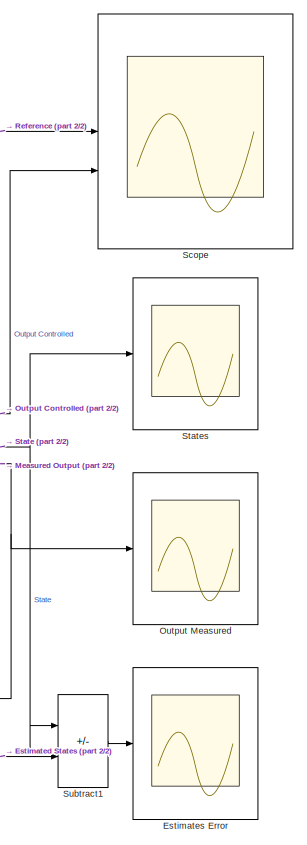
[diagram: root canvas - part 1/2, right side, full height]
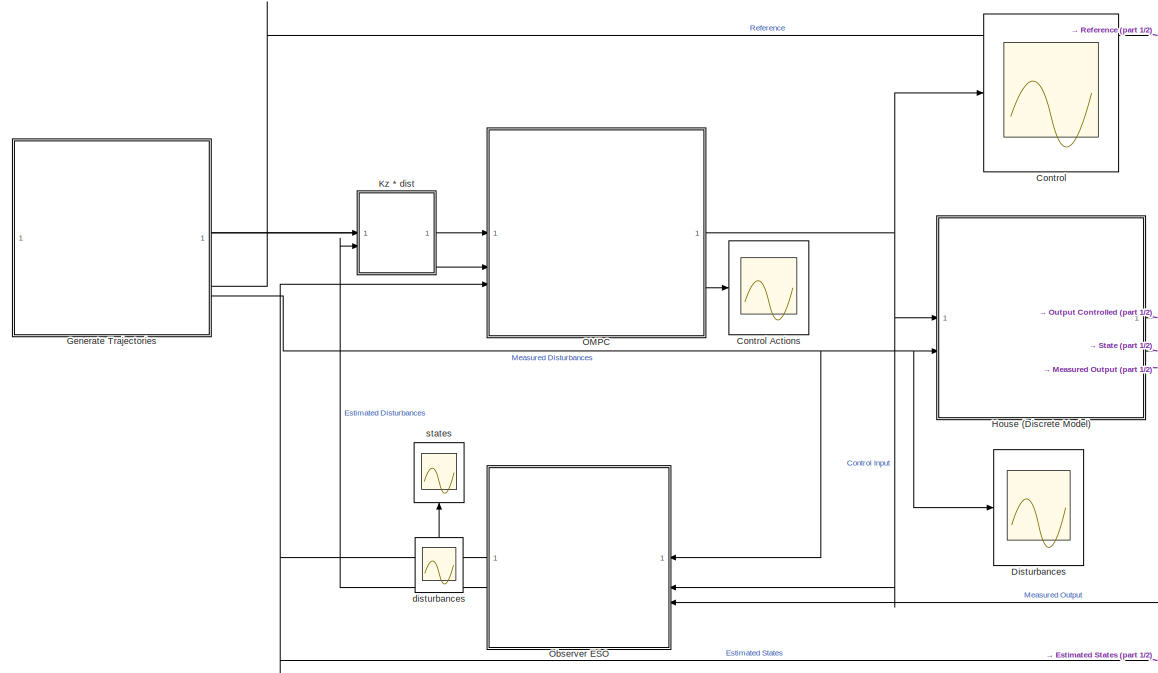
[diagram: root canvas - part 2/2, most of the canvas]
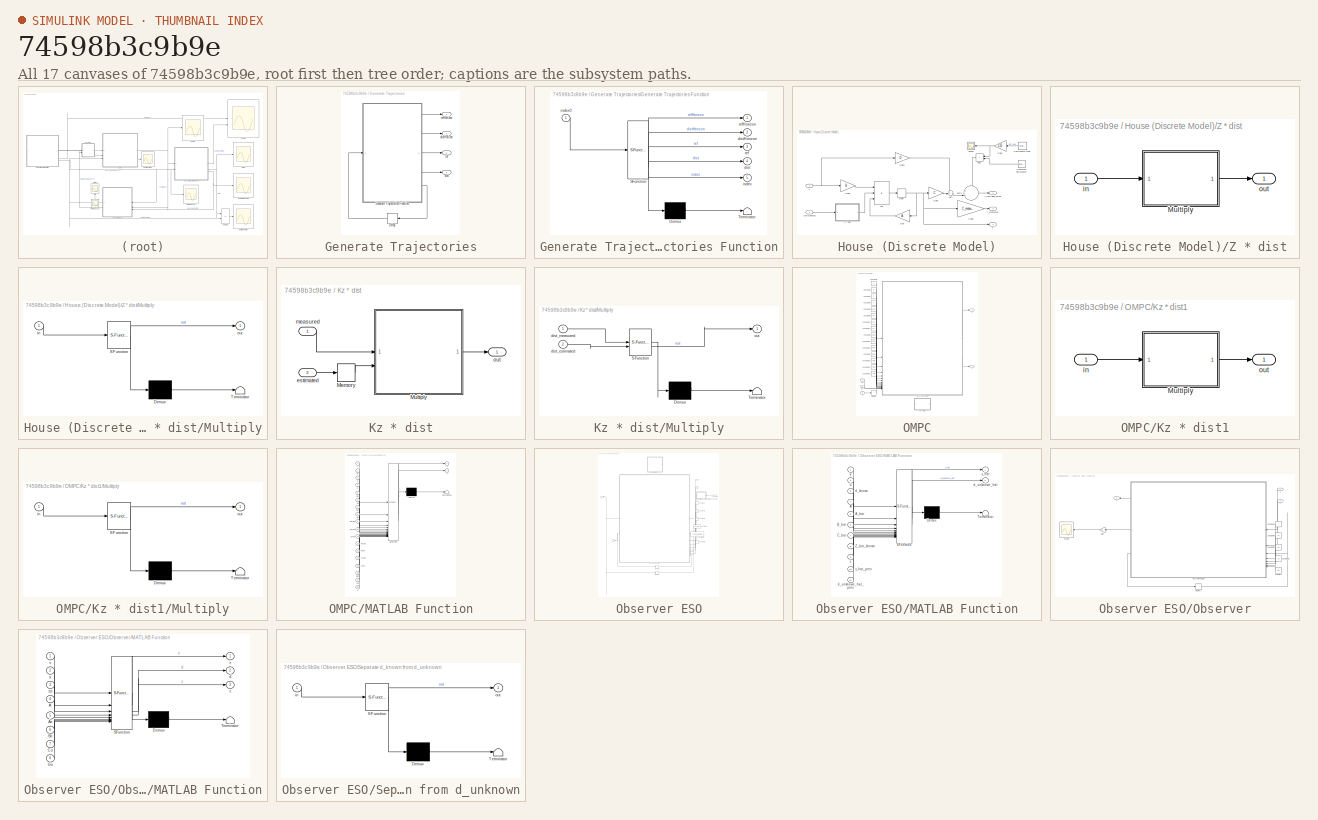
[diagram: thumbnail index - all 17 canvases of the model, root first then tree order]
MODEL slx_74598b3c9b9e
KIND model
CONFIG AbsTol = auto
CONFIG EnableMultiTasking = off
CONFIG FixedStep = Ts
CONFIG MaxStep = auto
CONFIG MinStep = auto
CONFIG RelTol = 1e-3
CONFIG SampleTimeConstraint = Unconstrained
CONFIG SolverName = ode8
CONFIG StartTime = 0.0
CONFIG StopTime = time
BLOCK [Scope] Control
  Floating = off
  NumInputPorts = 1
  ScopeSpecificationString = Simulink.scopes.TimeScopeBlockCfg('CurrentConfiguration', extmgr.ConfigurationSet(extmgr.Configuration('Core','General UI',true,'FigureColor',[1 1 1]),extmgr.Configuration('Core','Source UI',true),extmgr.Configuration('Sources','WiredSimulink',true,'DataLoggingVariableName','ScopeData2'),extmgr.Configuration('Visuals','Time Domain',true,'SerializedDisplays',{struct('MinYLimReal','20.91505','MaxYLi...<+1700ch>
BLOCK [Scope] Control Actions
  Floating = off
  NumInputPorts = 1
  ScopeSpecificationString = Simulink.scopes.TimeScopeBlockCfg('CurrentConfiguration', extmgr.ConfigurationSet(extmgr.Configuration('Core','General UI',true,'FigureColor',[1 1 1]),extmgr.Configuration('Core','Source UI',true),extmgr.Configuration('Sources','WiredSimulink',true,'DataLoggingVariableName','ScopeData1'),extmgr.Configuration('Visuals','Time Domain',true,'SerializedDisplays',{struct('MinYLimReal','-27.8152','MaxYLi...<+1680ch>
BLOCK [Scope] Disturbances
  Floating = off
  NumInputPorts = 1
  ScopeSpecificationString = Simulink.scopes.TimeScopeBlockCfg('CurrentConfiguration', extmgr.ConfigurationSet(extmgr.Configuration('Core','General UI',true,'FigureColor',[1 1 1]),extmgr.Configuration('Core','Source UI',true),extmgr.Configuration('Sources','WiredSimulink',true,'DataLoggingVariableName','ScopeData6'),extmgr.Configuration('Visuals','Time Domain',true,'SerializedDisplays',{struct('MinYLimReal','-126.0625','MaxYL...<+1825ch>
BLOCK [Scope] Estimates Error
  Floating = off
  NumInputPorts = 1
  ScopeSpecificationString = Simulink.scopes.TimeScopeBlockCfg('CurrentConfiguration', extmgr.ConfigurationSet(extmgr.Configuration('Core','General UI',true),extmgr.Configuration('Core','Source UI',true),extmgr.Configuration('Sources','WiredSimulink',true,'DataLoggingVariableName','ScopeData3'),extmgr.Configuration('Visuals','Time Domain',true,'SerializedDisplays',{struct('MinYLimReal','-4.83668','MaxYLimReal','3.90445','YLab...<+1980ch>
BLOCK [SubSystem] Generate Trajectories
BLOCK [Delay] Generate Trajectories/Delay
  DelayLength = 1
  InitialCondition = 1
  InputPortMap = u0
  NameLocation = top
BLOCK [SubSystem] Generate Trajectories/Generate Trajectories Function
  ErrorFcn = Stateflow.Translate.translate
  LibrarySourceBlock = simulink/User-Defined\nFunctions/MATLAB Function
  PermitHierarchicalResolution = ExplicitOnly
  SFBlockType = MATLAB Function
  TreatAsAtomicUnit = on
BLOCK [Demux] Generate Trajectories/Generate Trajectories Function/ Demux 
  Outputs = 1
BLOCK [S-Function] Generate Trajectories/Generate Trajectories Function/ SFunction 
  EnableBusSupport = on
  FunctionName = sf_sfun
  Parameters = Ts,distValues,na,refValues,time
  PortCounts = [1 6]
  SFcnIsStateOwnerBlock = off
  SFunctionDeploymentMode = off
  Tag = Stateflow S-Function 10
BLOCK [Terminator] Generate Trajectories/Generate Trajectories Function/ Terminator 
BLOCK [Outport] Generate Trajectories/Generate Trajectories Function/dist
  Port = 4
BLOCK [Outport] Generate Trajectories/Generate Trajectories Function/distHorizon
  Port = 2
BLOCK [Outport] Generate Trajectories/Generate Trajectories Function/index
  Port = 5
BLOCK [Inport] Generate Trajectories/Generate Trajectories Function/index0
BLOCK [Outport] Generate Trajectories/Generate Trajectories Function/ref
  Port = 3
BLOCK [Outport] Generate Trajectories/Generate Trajectories Function/refHorizon
BLOCK [Outport] Generate Trajectories/dist
  Port = 4
BLOCK [Outport] Generate Trajectories/distHorizon
  Port = 2
BLOCK [Outport] Generate Trajectories/ref
  Port = 3
BLOCK [Outport] Generate Trajectories/refHorizon
BLOCK [SubSystem] House (Discrete Model)
BLOCK [Sum] House (Discrete Model)/Add
  IconShape = rectangular
  Inputs = +++
BLOCK [Sum] House (Discrete Model)/Add1
  Commented = on
  IconShape = rectangular
  NameLocation = top
BLOCK [Delay] House (Discrete Model)/Delay
  DelayLength = 1
  InitialCondition = x0
  InputPortMap = u0
BLOCK [Reference] House (Discrete Model)/Disturbance Load  REF=eeStairGenerator/Stair Generator
  Commented = on
  LibrarySourceBlock = ee_sl_lib/General Control/Stair Generator
  NameLocation = top
  SourceBlock = eeStairGenerator/Stair Generator
  SourceType = Stair Generator
BLOCK [Inport] House (Discrete Model)/Disturbances
  Port = 2
BLOCK [Gain] House (Discrete Model)/Gain
  Gain = A
  Multiplication = Matrix(K*u) (u vector)
  NameLocation = top
BLOCK [Gain] House (Discrete Model)/Gain1
  Gain = C
  Multiplication = Matrix(K*u) (u vector)
BLOCK [Gain] House (Discrete Model)/Gain2
  Gain = B
  Multiplication = Matrix(K*u) (u vector)
BLOCK [Gain] House (Discrete Model)/Gain3
  Gain = D
  Multiplication = Matrix(K*u)
BLOCK [Gain] House (Discrete Model)/Gain4
  Commented = on
  Gain = 0.25
  NameLocation = top
BLOCK [Gain] House (Discrete Model)/Gain5
  Gain = C_measured
  Multiplication = Matrix(K*u) (u vector)
BLOCK [Reference] House (Discrete Model)/Measuring disturbance  REF=simulink/Sources/Band-Limited
White Noise
  Commented = on
  SourceBlock = simulink/Sources/Band-Limited\nWhite Noise
  SourceType = Band-Limited White Noise.
BLOCK [Scope] House (Discrete Model)/Scope
  Commented = on
  Floating = off
  NameLocation = top
  NumInputPorts = 1
  ScopeSpecificationString = Simulink.scopes.TimeScopeBlockCfg('CurrentConfiguration', extmgr.ConfigurationSet(extmgr.Configuration('Core','General UI',true),extmgr.Configuration('Core','Source UI',true),extmgr.Configuration('Sources','WiredSimulink',true,'DataLoggingVariableName','ScopeData1'),extmgr.Configuration('Visuals','Time Domain',true,'SerializedDisplays',{struct('MinYLimReal','0.875','MaxYLimReal','2.125','YLabelRea...<+1381ch>
BLOCK [Sum] House (Discrete Model)/Sum
  Inputs = ++|
BLOCK [Sum] House (Discrete Model)/Sum1
  Inputs = ++|
BLOCK [SubSystem] House (Discrete Model)/Z * dist
BLOCK [SubSystem] House (Discrete Model)/Z * dist/Multiply
  ErrorFcn = Stateflow.Translate.translate
  LibrarySourceBlock = simulink/User-Defined\nFunctions/MATLAB Function
  PermitHierarchicalResolution = ExplicitOnly
  SFBlockType = MATLAB Function
  TreatAsAtomicUnit = on
BLOCK [Demux] House (Discrete Model)/Z * dist/Multiply/ Demux 
  Outputs = 1
BLOCK [S-Function] House (Discrete Model)/Z * dist/Multiply/ SFunction 
  EnableBusSupport = on
  FunctionName = sf_sfun
  Parameters = Z
  PortCounts = [1 2]
  SFcnIsStateOwnerBlock = off
  SFunctionDeploymentMode = off
  Tag = Stateflow S-Function 1
BLOCK [Terminator] House (Discrete Model)/Z * dist/Multiply/ Terminator 
BLOCK [Inport] House (Discrete Model)/Z * dist/Multiply/in
BLOCK [Outport] House (Discrete Model)/Z * dist/Multiply/out
BLOCK [Inport] House (Discrete Model)/Z * dist/in
BLOCK [Outport] House (Discrete Model)/Z * dist/out
BLOCK [Inport] House (Discrete Model)/u
BLOCK [Outport] House (Discrete Model)/x
  Port = 2
BLOCK [Outport] House (Discrete Model)/y_controlled_output
BLOCK [Outport] House (Discrete Model)/y_measured
  Port = 3
BLOCK [SubSystem] Kz * dist
BLOCK [Memory] Kz * dist/Memory
  InitialCondition = zeros(size(Z,2)-3,1)
BLOCK [SubSystem] Kz * dist/Multiply
  ErrorFcn = Stateflow.Translate.translate
  LibrarySourceBlock = simulink/User-Defined\nFunctions/MATLAB Function
  PermitHierarchicalResolution = ExplicitOnly
  SFBlockType = MATLAB Function
  TreatAsAtomicUnit = on
BLOCK [Demux] Kz * dist/Multiply/ Demux 
  Outputs = 1
BLOCK [S-Function] Kz * dist/Multiply/ SFunction 
  EnableBusSupport = on
  FunctionName = sf_sfun
  Parameters = Ad,Cd,Zd,na
  PortCounts = [2 2]
  SFcnIsStateOwnerBlock = off
  SFunctionDeploymentMode = off
  Tag = Stateflow S-Function 12
BLOCK [Terminator] Kz * dist/Multiply/ Terminator 
BLOCK [Inport] Kz * dist/Multiply/dist_estimated
  Port = 2
BLOCK [Inport] Kz * dist/Multiply/dist_measured
BLOCK [Outport] Kz * dist/Multiply/out
BLOCK [Inport] Kz * dist/estimated
  Port = 2
BLOCK [Inport] Kz * dist/measured
BLOCK [Outport] Kz * dist/out
BLOCK [SubSystem] OMPC
BLOCK [Constant] OMPC/Constant1
  Value = xmax
  VectorParams1D = off
BLOCK [Constant] OMPC/Constant10
  Value = umax
  VectorParams1D = off
BLOCK [Constant] OMPC/Constant11
  Value = umin
  VectorParams1D = off
BLOCK [Constant] OMPC/Constant12
  Value = ymax
BLOCK [Constant] OMPC/Constant13
  Value = ymin
BLOCK [Constant] OMPC/Constant14
  Value = nc
BLOCK [Constant] OMPC/Constant15
  Value = xmin
BLOCK [Constant] OMPC/Constant16
  Value = Scr
  VectorParams1D = off
BLOCK [Constant] OMPC/Constant2
  Value = A
BLOCK [Constant] OMPC/Constant3
  Value = B
  VectorParams1D = off
BLOCK [Constant] OMPC/Constant4
  Value = C
  VectorParams1D = off
BLOCK [Constant] OMPC/Constant5
  Value = npred
BLOCK [Constant] OMPC/Constant6
  Value = K
  VectorParams1D = off
BLOCK [Constant] OMPC/Constant8
  Value = Sxc
  VectorParams1D = off
BLOCK [Constant] OMPC/Constant9
  Value = Sc
  VectorParams1D = off
BLOCK [SubSystem] OMPC/Kz * dist1
  Commented = on
BLOCK [SubSystem] OMPC/Kz * dist1/Multiply
  ErrorFcn = Stateflow.Translate.translate
  LibrarySourceBlock = simulink/User-Defined\nFunctions/MATLAB Function
  PermitHierarchicalResolution = ExplicitOnly
  SFBlockType = MATLAB Function
  TreatAsAtomicUnit = on
BLOCK [Demux] OMPC/Kz * dist1/Multiply/ Demux 
  Outputs = 1
BLOCK [S-Function] OMPC/Kz * dist1/Multiply/ SFunction 
  EnableBusSupport = on
  FunctionName = sf_sfun
  Parameters = Kz
  PortCounts = [1 2]
  SFcnIsStateOwnerBlock = off
  SFunctionDeploymentMode = off
  Tag = Stateflow S-Function 13
BLOCK [Terminator] OMPC/Kz * dist1/Multiply/ Terminator 
BLOCK [Inport] OMPC/Kz * dist1/Multiply/in
BLOCK [Outport] OMPC/Kz * dist1/Multiply/out
BLOCK [Inport] OMPC/Kz * dist1/in
BLOCK [Outport] OMPC/Kz * dist1/out
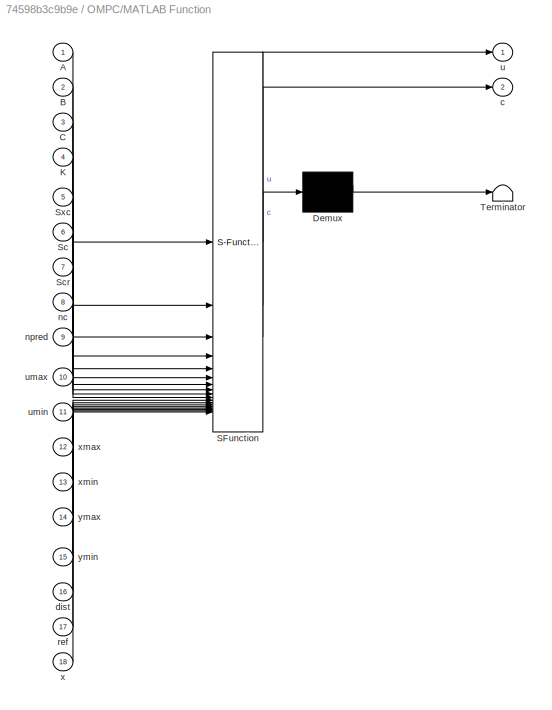
BLOCK [SubSystem] OMPC/MATLAB Function
  ErrorFcn = Stateflow.Translate.translate
  LibrarySourceBlock = simulink/User-Defined\nFunctions/MATLAB Function
  PermitHierarchicalResolution = ExplicitOnly
  SFBlockType = MATLAB Function
  TreatAsAtomicUnit = on
BLOCK [Demux] OMPC/MATLAB Function/ Demux 
  Outputs = 1
BLOCK [S-Function] OMPC/MATLAB Function/ SFunction 
  EnableBusSupport = on
  FunctionName = sf_sfun
  PortCounts = [18 3]
  SFcnIsStateOwnerBlock = off
  SFunctionDeploymentMode = off
  Tag = Stateflow S-Function 14
BLOCK [Terminator] OMPC/MATLAB Function/ Terminator 
BLOCK [Inport] OMPC/MATLAB Function/A
BLOCK [Inport] OMPC/MATLAB Function/B
  Port = 2
BLOCK [Inport] OMPC/MATLAB Function/C
  Port = 3
BLOCK [Inport] OMPC/MATLAB Function/K
  Port = 4
BLOCK [Inport] OMPC/MATLAB Function/Sc
  Port = 6
BLOCK [Inport] OMPC/MATLAB Function/Scr
  Port = 7
BLOCK [Inport] OMPC/MATLAB Function/Sxc
  Port = 5
BLOCK [Outport] OMPC/MATLAB Function/c
  Port = 2
BLOCK [Inport] OMPC/MATLAB Function/dist
  Port = 16
BLOCK [Inport] OMPC/MATLAB Function/nc
  Port = 8
BLOCK [Inport] OMPC/MATLAB Function/npred
  Port = 9
BLOCK [Inport] OMPC/MATLAB Function/ref
  Port = 17
BLOCK [Outport] OMPC/MATLAB Function/u
BLOCK [Inport] OMPC/MATLAB Function/umax
  Port = 10
BLOCK [Inport] OMPC/MATLAB Function/umin
  Port = 11
BLOCK [Inport] OMPC/MATLAB Function/x
  Port = 18
BLOCK [Inport] OMPC/MATLAB Function/xmax
  Port = 12
BLOCK [Inport] OMPC/MATLAB Function/xmin
  Port = 13
BLOCK [Inport] OMPC/MATLAB Function/ymax
  Port = 14
BLOCK [Inport] OMPC/MATLAB Function/ymin
  Port = 15
BLOCK [Memory] OMPC/Memory
  InitialCondition = x0
BLOCK [Outport] OMPC/c
  Port = 2
BLOCK [Inport] OMPC/dist
  Port = 2
BLOCK [Inport] OMPC/ref
BLOCK [Outport] OMPC/u
BLOCK [Inport] OMPC/x
  Port = 3
BLOCK [SubSystem] Observer ESO
BLOCK [Constant] Observer ESO/Constant
  NameLocation = top
  Value = A
BLOCK [Constant] Observer ESO/Constant1
  NameLocation = top
  Value = A_bar
BLOCK [Constant] Observer ESO/Constant2
  NameLocation = top
  Value = B_bar
BLOCK [Constant] Observer ESO/Constant3
  NameLocation = top
  Value = C_bar
BLOCK [Constant] Observer ESO/Constant4
  NameLocation = top
  Value = Z_bar_known
BLOCK [Constant] Observer ESO/Constant5
  NameLocation = top
  Value = L
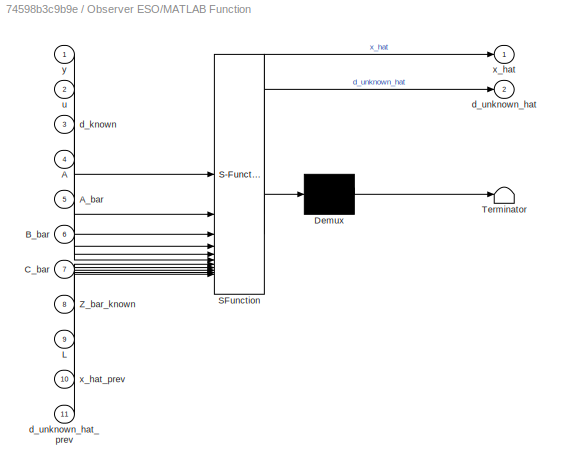
BLOCK [SubSystem] Observer ESO/MATLAB Function
  ErrorFcn = Stateflow.Translate.translate
  LibrarySourceBlock = simulink/User-Defined\nFunctions/MATLAB Function
  NameLocation = top
  PermitHierarchicalResolution = ExplicitOnly
  SFBlockType = MATLAB Function
  TreatAsAtomicUnit = on
BLOCK [Demux] Observer ESO/MATLAB Function/ Demux 
  Outputs = 1
BLOCK [S-Function] Observer ESO/MATLAB Function/ SFunction 
  EnableBusSupport = on
  FunctionName = sf_sfun
  PortCounts = [11 3]
  SFcnIsStateOwnerBlock = off
  SFunctionDeploymentMode = off
  Tag = Stateflow S-Function 15
BLOCK [Terminator] Observer ESO/MATLAB Function/ Terminator 
BLOCK [Inport] Observer ESO/MATLAB Function/A
  Port = 4
BLOCK [Inport] Observer ESO/MATLAB Function/A_bar
  Port = 5
BLOCK [Inport] Observer ESO/MATLAB Function/B_bar
  Port = 6
BLOCK [Inport] Observer ESO/MATLAB Function/C_bar
  Port = 7
BLOCK [Inport] Observer ESO/MATLAB Function/L
  Port = 9
BLOCK [Inport] Observer ESO/MATLAB Function/Z_bar_known
  Port = 8
BLOCK [Inport] Observer ESO/MATLAB Function/d_known
  Port = 3
BLOCK [Outport] Observer ESO/MATLAB Function/d_unknown_hat
  Port = 2
BLOCK [Inport] Observer ESO/MATLAB Function/d_unknown_hat_prev
  Port = 11
BLOCK [Inport] Observer ESO/MATLAB Function/u
  Port = 2
BLOCK [Outport] Observer ESO/MATLAB Function/x_hat
BLOCK [Inport] Observer ESO/MATLAB Function/x_hat_prev
  Port = 10
BLOCK [Inport] Observer ESO/MATLAB Function/y
BLOCK [Memory] Observer ESO/Memory
  InitialCondition = zeros(size(Z,2) - size(Z_bar_known,2),1)
BLOCK [Memory] Observer ESO/Memory1
  InitialCondition = x0
BLOCK [SubSystem] Observer ESO/Observer
  Commented = on
BLOCK [Constant] Observer ESO/Observer/Constant
  NameLocation = top
  Value = Go
  VectorParams1D = off
BLOCK [Constant] Observer ESO/Observer/Constant1
  NameLocation = top
  Value = Co
  VectorParams1D = off
BLOCK [Constant] Observer ESO/Observer/Constant2
  NameLocation = top
  Value = Bo
  VectorParams1D = off
BLOCK [Constant] Observer ESO/Observer/Constant3
  NameLocation = top
  Value = Ao
  VectorParams1D = off
BLOCK [Constant] Observer ESO/Observer/Constant4
  NameLocation = top
  Value = A
BLOCK [Gain] Observer ESO/Observer/Gain
  Gain = Kz
  Multiplication = Matrix(K*u) (u vector)
  NameLocation = top
BLOCK [SubSystem] Observer ESO/Observer/MATLAB Function
  ErrorFcn = Stateflow.Translate.translate
  LibrarySourceBlock = simulink/User-Defined\nFunctions/MATLAB Function
  NameLocation = top
  PermitHierarchicalResolution = ExplicitOnly
  SFBlockType = MATLAB Function
  TreatAsAtomicUnit = on
BLOCK [Demux] Observer ESO/Observer/MATLAB Function/ Demux 
  Outputs = 1
BLOCK [S-Function] Observer ESO/Observer/MATLAB Function/ SFunction 
  EnableBusSupport = on
  FunctionName = sf_sfun
  PortCounts = [8 4]
  SFcnIsStateOwnerBlock = off
  SFunctionDeploymentMode = off
  Tag = Stateflow S-Function 16
BLOCK [Terminator] Observer ESO/Observer/MATLAB Function/ Terminator 
BLOCK [Inport] Observer ESO/Observer/MATLAB Function/A
  Port = 4
BLOCK [Inport] Observer ESO/Observer/MATLAB Function/Ao
  Port = 5
BLOCK [Inport] Observer ESO/Observer/MATLAB Function/Bo
  Port = 6
BLOCK [Inport] Observer ESO/Observer/MATLAB Function/Co
  Port = 7
BLOCK [Inport] Observer ESO/Observer/MATLAB Function/Go
  Port = 8
BLOCK [Outport] Observer ESO/Observer/MATLAB Function/d
  Port = 2
BLOCK [Inport] Observer ESO/Observer/MATLAB Function/u
BLOCK [Outport] Observer ESO/Observer/MATLAB Function/x
BLOCK [Inport] Observer ESO/Observer/MATLAB Function/y
  Port = 2
BLOCK [Outport] Observer ESO/Observer/MATLAB Function/z
  Port = 3
BLOCK [Inport] Observer ESO/Observer/MATLAB Function/zp
  Port = 3
BLOCK [Memory] Observer ESO/Observer/Memory
  InitialCondition = [x0;zeros(size(Z,2),1)]
BLOCK [Scope] Observer ESO/Observer/Scope
  Floating = off
  NameLocation = top
  NumInputPorts = 1
  ScopeSpecificationString = Simulink.scopes.TimeScopeBlockCfg('CurrentConfiguration', extmgr.ConfigurationSet(extmgr.Configuration('Core','General UI',true),extmgr.Configuration('Core','Source UI',true),extmgr.Configuration('Sources','WiredSimulink',true,'DataLoggingVariableName','ScopeData1'),extmgr.Configuration('Visuals','Time Domain',true,'SerializedDisplays',{struct('MinYLimReal','-0.000000000000000000000000024','MaxYLi...<+1594ch>
BLOCK [Inport] Observer ESO/Observer/u
BLOCK [Outport] Observer ESO/Observer/x
  NameLocation = top
BLOCK [Inport] Observer ESO/Observer/y
  Port = 2
BLOCK [SubSystem] Observer ESO/Separate d_known from d_unknown
  ErrorFcn = Stateflow.Translate.translate
  LibrarySourceBlock = simulink/User-Defined\nFunctions/MATLAB Function
  NameLocation = top
  PermitHierarchicalResolution = ExplicitOnly
  SFBlockType = MATLAB Function
  TreatAsAtomicUnit = on
BLOCK [Demux] Observer ESO/Separate d_known from d_unknown/ Demux 
  Outputs = 1
BLOCK [S-Function] Observer ESO/Separate d_known from d_unknown/ SFunction 
  EnableBusSupport = on
  FunctionName = sf_sfun
  PortCounts = [1 2]
  SFcnIsStateOwnerBlock = off
  SFunctionDeploymentMode = off
  Tag = Stateflow S-Function 17
BLOCK [Terminator] Observer ESO/Separate d_known from d_unknown/ Terminator 
BLOCK [Inport] Observer ESO/Separate d_known from d_unknown/in
BLOCK [Outport] Observer ESO/Separate d_known from d_unknown/out
BLOCK [Outport] Observer ESO/d
  NameLocation = top
  Port = 2
BLOCK [Inport] Observer ESO/d_known
  NameLocation = top
BLOCK [Inport] Observer ESO/u
  NameLocation = top
  Port = 2
BLOCK [Outport] Observer ESO/x
  NameLocation = top
BLOCK [Inport] Observer ESO/y
  NameLocation = top
  Port = 3
BLOCK [Scope] Output Measured
  Floating = off
  NumInputPorts = 1
  ScopeSpecificationString = Simulink.scopes.TimeScopeBlockCfg('CurrentConfiguration', extmgr.ConfigurationSet(extmgr.Configuration('Core','General UI',true,'FigureColor',[1 1 1]),extmgr.Configuration('Core','Source UI',true),extmgr.Configuration('Sources','WiredSimulink',true,'DataLoggingVariableName','ScopeData4'),extmgr.Configuration('Visuals','Time Domain',true,'SerializedDisplays',{struct('MinYLimReal','19.36341','MaxYLi...<+4080ch>
BLOCK [Scope] Scope
  Floating = off
  NumInputPorts = 2
  ScopeSpecificationString = Simulink.scopes.TimeScopeBlockCfg('CurrentConfiguration', extmgr.ConfigurationSet(extmgr.Configuration('Core','General UI',true,'FigureColor',[1 1 1]),extmgr.Configuration('Core','Source UI',true),extmgr.Configuration('Sources','WiredSimulink',true,'DataLoggingVariableName','ScopeData5'),extmgr.Configuration('Visuals','Time Domain',true,'PlotType','Line','SerializedDisplays',{struct('MinYLimReal',...<+1889ch>
BLOCK [Scope] States
  Floating = off
  NumInputPorts = 1
  ScopeSpecificationString = Simulink.scopes.TimeScopeBlockCfg('CurrentConfiguration', extmgr.ConfigurationSet(extmgr.Configuration('Core','General UI',true,'FigureColor',[1 1 1]),extmgr.Configuration('Core','Source UI',true),extmgr.Configuration('Sources','WiredSimulink',true,'DataLoggingVariableName','ScopeData7'),extmgr.Configuration('Visuals','Time Domain',true,'SerializedDisplays',{struct('MinYLimReal','-8.19039','MaxYLi...<+4172ch>
BLOCK [Sum] Subtract1
  IconShape = rectangular
  Inputs = +-
BLOCK [Scope] disturbances
  Floating = off
  NameLocation = top
  NumInputPorts = 1
  ScopeSpecificationString = Simulink.scopes.TimeScopeBlockCfg('CurrentConfiguration', extmgr.ConfigurationSet(extmgr.Configuration('Core','General UI',true),extmgr.Configuration('Core','Source UI',true),extmgr.Configuration('Sources','WiredSimulink',true,'DataLoggingVariableName','ScopeData8'),extmgr.Configuration('Visuals','Time Domain',true,'SerializedDisplays',{struct('MinYLimReal','-0.0000000000000000000000000000008','Ma...<+2118ch>
BLOCK [Scope] states
  Floating = off
  NameLocation = top
  NumInputPorts = 1
  ScopeSpecificationString = Simulink.scopes.TimeScopeBlockCfg('CurrentConfiguration', extmgr.ConfigurationSet(extmgr.Configuration('Core','General UI',true),extmgr.Configuration('Core','Source UI',true),extmgr.Configuration('Sources','WiredSimulink',true,'DataLoggingVariableName','ScopeData9'),extmgr.Configuration('Visuals','Time Domain',true,'SerializedDisplays',{struct('MinYLimReal','-8.90175','MaxYLimReal','34.34191','YLa...<+2239ch>
LINE Generate Trajectories/Delay:1 -> Generate Trajectories/Generate Trajectories Function:1
LINE Generate Trajectories/Generate Trajectories Function:1 -> Generate Trajectories/refHorizon:1
LINE Generate Trajectories/Generate Trajectories Function:2 -> Generate Trajectories/distHorizon:1
LINE Generate Trajectories/Generate Trajectories Function:3 -> Generate Trajectories/ref:1
LINE Generate Trajectories/Generate Trajectories Function:4 -> Generate Trajectories/dist:1
LINE Generate Trajectories/Generate Trajectories Function:5 -> Generate Trajectories/Delay:1
LINE Generate Trajectories:1 -> OMPC:1
LINE Generate Trajectories:2 -> Kz * dist:1
LINE Generate Trajectories:3 -> Scope:1
NET Generate Trajectories:4 -> Disturbances:1, House (Discrete Model):2, Observer ESO:1
LINE House (Discrete Model)/Add1:1 -> House (Discrete Model)/Sum1:1
LINE House (Discrete Model)/Add:1 -> House (Discrete Model)/Delay:1
NET House (Discrete Model)/Delay:1 -> House (Discrete Model)/Gain1:1, House (Discrete Model)/Gain5:1, House (Discrete Model)/Gain:1, House (Discrete Model)/x:1
LINE House (Discrete Model)/Disturbance Load:1 -> House (Discrete Model)/Gain4:1
LINE House (Discrete Model)/Disturbances:1 -> House (Discrete Model)/Z * dist:1
LINE House (Discrete Model)/Gain1:1 -> House (Discrete Model)/Sum:2
LINE House (Discrete Model)/Gain2:1 -> House (Discrete Model)/Add:1
LINE House (Discrete Model)/Gain3:1 -> House (Discrete Model)/Sum:1
NET House (Discrete Model)/Gain4:1 -> House (Discrete Model)/Add1:1, House (Discrete Model)/Scope:1
LINE House (Discrete Model)/Gain5:1 -> House (Discrete Model)/y_measured:1
LINE House (Discrete Model)/Gain:1 -> House (Discrete Model)/Add:3
LINE House (Discrete Model)/Measuring disturbance:1 -> House (Discrete Model)/Add1:2
LINE House (Discrete Model)/Sum1:1 -> House (Discrete Model)/y_controlled_output:1
LINE House (Discrete Model)/Sum:1 -> House (Discrete Model)/Sum1:2
LINE House (Discrete Model)/Z * dist/Multiply:1 -> House (Discrete Model)/Z * dist/out:1
LINE House (Discrete Model)/Z * dist/in:1 -> House (Discrete Model)/Z * dist/Multiply:1
LINE House (Discrete Model)/Z * dist:1 -> House (Discrete Model)/Add:2
NET House (Discrete Model)/u:1 -> House (Discrete Model)/Gain2:1, House (Discrete Model)/Gain3:1
LINE House (Discrete Model):1 -> Scope:2
NET House (Discrete Model):2 -> States:1, Subtract1:1
NET House (Discrete Model):3 -> Observer ESO:3, Output Measured:1
LINE Kz * dist/Memory:1 -> Kz * dist/Multiply:2
LINE Kz * dist/Multiply:1 -> Kz * dist/out:1
LINE Kz * dist/estimated:1 -> Kz * dist/Memory:1
LINE Kz * dist/measured:1 -> Kz * dist/Multiply:1
LINE Kz * dist:1 -> OMPC:2
LINE OMPC/Constant10:1 -> OMPC/MATLAB Function:10
LINE OMPC/Constant11:1 -> OMPC/MATLAB Function:11
LINE OMPC/Constant12:1 -> OMPC/MATLAB Function:14
LINE OMPC/Constant13:1 -> OMPC/MATLAB Function:15
LINE OMPC/Constant14:1 -> OMPC/MATLAB Function:8
LINE OMPC/Constant15:1 -> OMPC/MATLAB Function:13
LINE OMPC/Constant16:1 -> OMPC/MATLAB Function:7
LINE OMPC/Constant1:1 -> OMPC/MATLAB Function:12
LINE OMPC/Constant2:1 -> OMPC/MATLAB Function:1
LINE OMPC/Constant3:1 -> OMPC/MATLAB Function:2
LINE OMPC/Constant4:1 -> OMPC/MATLAB Function:3
LINE OMPC/Constant5:1 -> OMPC/MATLAB Function:9
LINE OMPC/Constant6:1 -> OMPC/MATLAB Function:4
LINE OMPC/Constant8:1 -> OMPC/MATLAB Function:5
LINE OMPC/Constant9:1 -> OMPC/MATLAB Function:6
LINE OMPC/Kz * dist1/Multiply:1 -> OMPC/Kz * dist1/out:1
LINE OMPC/Kz * dist1/in:1 -> OMPC/Kz * dist1/Multiply:1
LINE OMPC/MATLAB Function:1 -> OMPC/u:1
LINE OMPC/MATLAB Function:2 -> OMPC/c:1
LINE OMPC/Memory:1 -> OMPC/MATLAB Function:18
LINE OMPC/dist:1 -> OMPC/MATLAB Function:16
LINE OMPC/ref:1 -> OMPC/MATLAB Function:17
LINE OMPC/x:1 -> OMPC/Memory:1
NET OMPC:1 -> Control:1, House (Discrete Model):1, Observer ESO:2
LINE OMPC:2 -> Control Actions:1
LINE Observer ESO/Constant1:1 -> Observer ESO/MATLAB Function:5
LINE Observer ESO/Constant2:1 -> Observer ESO/MATLAB Function:6
LINE Observer ESO/Constant3:1 -> Observer ESO/MATLAB Function:7
LINE Observer ESO/Constant4:1 -> Observer ESO/MATLAB Function:8
LINE Observer ESO/Constant5:1 -> Observer ESO/MATLAB Function:9
LINE Observer ESO/Constant:1 -> Observer ESO/MATLAB Function:4
NET Observer ESO/MATLAB Function:1 -> Observer ESO/Memory1:1, Observer ESO/x:1
NET Observer ESO/MATLAB Function:2 -> Observer ESO/Memory:1, Observer ESO/d:1
LINE Observer ESO/Memory1:1 -> Observer ESO/MATLAB Function:10
LINE Observer ESO/Memory:1 -> Observer ESO/MATLAB Function:11
LINE Observer ESO/Observer/Constant1:1 -> Observer ESO/Observer/MATLAB Function:7
LINE Observer ESO/Observer/Constant2:1 -> Observer ESO/Observer/MATLAB Function:6
LINE Observer ESO/Observer/Constant3:1 -> Observer ESO/Observer/MATLAB Function:5
LINE Observer ESO/Observer/Constant4:1 -> Observer ESO/Observer/MATLAB Function:4
LINE Observer ESO/Observer/Constant:1 -> Observer ESO/Observer/MATLAB Function:8
LINE Observer ESO/Observer/Gain:1 -> Observer ESO/Observer/Scope:1
LINE Observer ESO/Observer/MATLAB Function:1 -> Observer ESO/Observer/x:1
LINE Observer ESO/Observer/MATLAB Function:2 -> Observer ESO/Observer/Gain:1
LINE Observer ESO/Observer/MATLAB Function:3 -> Observer ESO/Observer/Memory:1
LINE Observer ESO/Observer/Memory:1 -> Observer ESO/Observer/MATLAB Function:3
LINE Observer ESO/Observer/u:1 -> Observer ESO/Observer/MATLAB Function:1
LINE Observer ESO/Observer/y:1 -> Observer ESO/Observer/MATLAB Function:2
LINE Observer ESO/Separate d_known from d_unknown:1 -> Observer ESO/MATLAB Function:3
LINE Observer ESO/d_known:1 -> Observer ESO/Separate d_known from d_unknown:1
LINE Observer ESO/u:1 -> Observer ESO/MATLAB Function:2
LINE Observer ESO/y:1 -> Observer ESO/MATLAB Function:1
NET Observer ESO:1 -> OMPC:3, Subtract1:2, states:1
NET Observer ESO:2 -> Kz * dist:2, disturbances:1
LINE Subtract1:1 -> Estimates Error:1
note: NET lines group one-source signal fan-out (src -> all destinations, sorted); 1:1 wires keep LINE
CHART Observer ESO/MATLAB Function states=1 transitions=1
  STATE_LABEL 'eML_blk_kernel()'
  STATE_LABEL 'SCRIPT:\nfunction [x_hat, d_unknown_hat] = fcn(y, u, d_known, A, A_bar, B_bar, C_bar, Z_bar_known, L, x_hat_prev, d_unknown_hat_prev)\n\nnx = size(A, 1);\n\n% Rozszerzone stany\nx_bar_hat = [x_hat_prev; d_unknown_hat_prev];\ny_hat = C_bar * x_bar_hat;\n\n% Aktualizacja estymacji\nx_bar_hat = A_bar * x_bar_hat + B_bar * u + Z_bar_known * d_known + L * (y - y_hat);\n\nx_hat = x_bar_hat(1:nx); % Estymowane stany...<+74ch>'
CHART Observer ESO/Observer/MATLAB Function states=1 transitions=1
  STATE_LABEL 'eML_blk_kernel()'
  STATE_LABEL 'SCRIPT:\nfunction [x,d,z] = fcn(u,y,zp,A,Ao,Bo,Co,Go)\n\nnx = size(A,1);\nz = Ao*zp + Bo*u + Go*(y - Co*zp);\nx = z(1:nx,:);\nd = z(nx+1:end,:);'
CHART Observer ESO/Separate d_known from d_unknown states=1 transitions=1
  STATE_LABEL 'eML_blk_kernel()'
  STATE_LABEL 'SCRIPT:\nfunction out = fcn(in)\n\nout = in(1:3,:);\n'
CHART House (Discrete Model)/Z * dist/Multiply states=1 transitions=1
  STATE_LABEL 'eML_blk_kernel()'
  STATE_LABEL 'SCRIPT:\nfunction out = fcn(in, Z)\nout = Z*in;\n'
CHART Generate Trajectories/Generate Trajectories Function states=1 transitions=1
  STATE_LABEL 'eML_blk_kernel()'
  STATE_LABEL 'SCRIPT:\nfunction [refHorizon,distHorizon,ref,dist,index] = fcn(time, Ts, na, refValues, distValues, index0)\n\nflag = 1;\n[~, refHorizon, ref] = generateTrajectory(refValues,flag,time,Ts,na,index0);\nflag = 2;\n[~, distHorizon, dist] = generateTrajectory(distValues,flag,time,Ts,na,index0);\n\nindex = index0 + 1;\n'
CHART Kz * dist/Multiply states=1 transitions=1
  STATE_LABEL 'eML_blk_kernel()'
  STATE_LABEL 'SCRIPT:\nfunction out = fcn(dist_measured,dist_estimated, na, Ad, Cd, Zd)\n\n%Stwórz macierz kompensacji M\nM = create_Kz_matrix(Ad,Cd,Zd,na);\n\n%--------------------------------------------------------------------------\n%Stwórz wektor sygnałów zakłócających z danych pomiarowych oraz estymacji\nlen_measured = length(dist_measured);\nlen_estimated = length(dist_estimated);\nlen_repeating = 3 + len_estimate...<+392ch>'
CHART OMPC/Kz * dist1/Multiply states=1 transitions=1
  STATE_LABEL 'eML_blk_kernel()'
  STATE_LABEL 'SCRIPT:\nfunction out = fcn(in, Kz)\nout = Kz*in;\n'
CHART OMPC/MATLAB Function states=1 transitions=1
  STATE_LABEL 'eML_blk_kernel()'
  STATE_LABEL 'SCRIPT:\nfunction [u,c] = fcn(A,B,C,K,Sxc,Sc,Scr,nc,npred,umax,umin,xmax,xmin,ymax,ymin,dist,ref,x)\n\n[u,ctrl] = ompc_law(A,B,C,K,Sxc,Sc,Scr,umax,umin,xmax,xmin,ymax,ymin,nc,npred,ref,dist,x);\nc = ctrl(1:size(B,2),:);'
CHART  states=0 transitions=0
CHART  states=0 transitions=0
CHART  states=0 transitions=0
CHART  states=0 transitions=0
CHART  states=0 transitions=0
CHART  states=0 transitions=0
CHART  states=0 transitions=0
CHART  states=0 transitions=0
